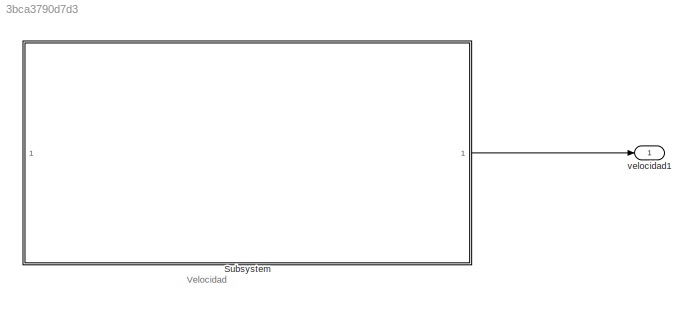
MODEL slx_3bca3790d7d3
KIND model
CONFIG AbsTol = auto
CONFIG EnableMultiTasking = off
CONFIG FixedStep = auto
CONFIG MaxStep = auto
CONFIG MinStep = auto
CONFIG RelTol = 1e-3
CONFIG SampleTimeConstraint = Unconstrained
CONFIG SolverName = VariableStepAuto
CONFIG StartTime = 0.0
CONFIG StopTime = 10.0
BLOCK [SubSystem] Subsystem
  ReferencedSubsystem = EncoderV_LA
BLOCK [Outport] velocidad1
ANNOTATION (root): Velocidad
LINE Subsystem:1 -> velocidad1:1
